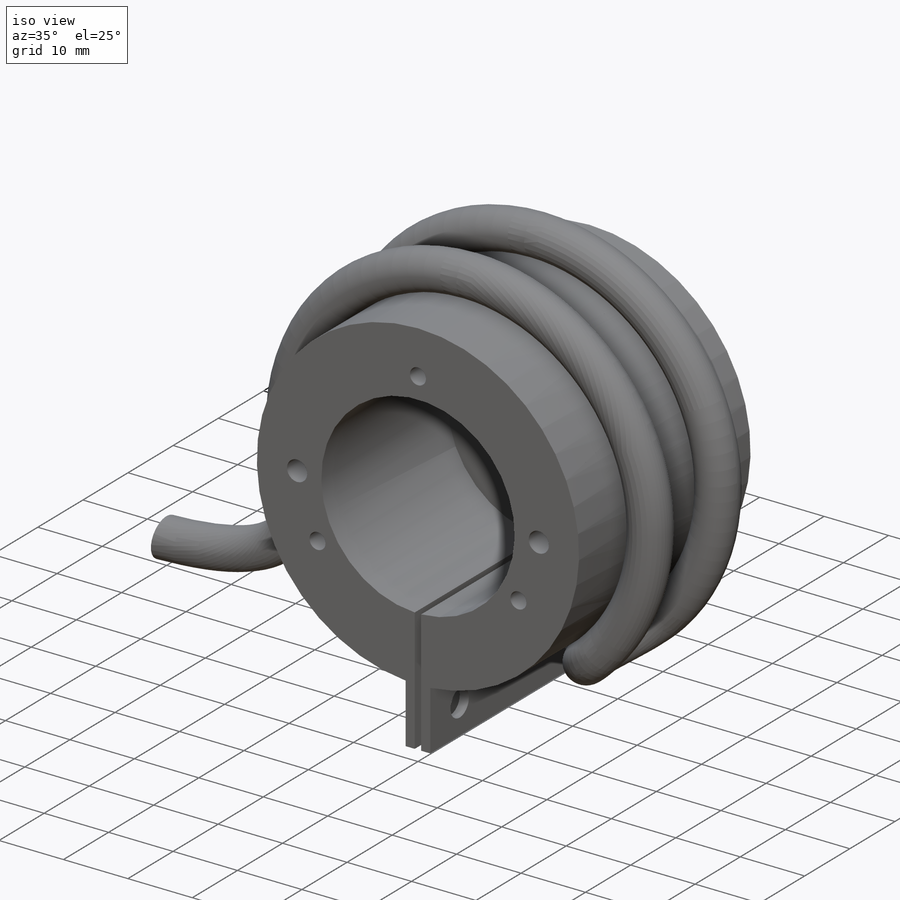
[diagram: iso view]
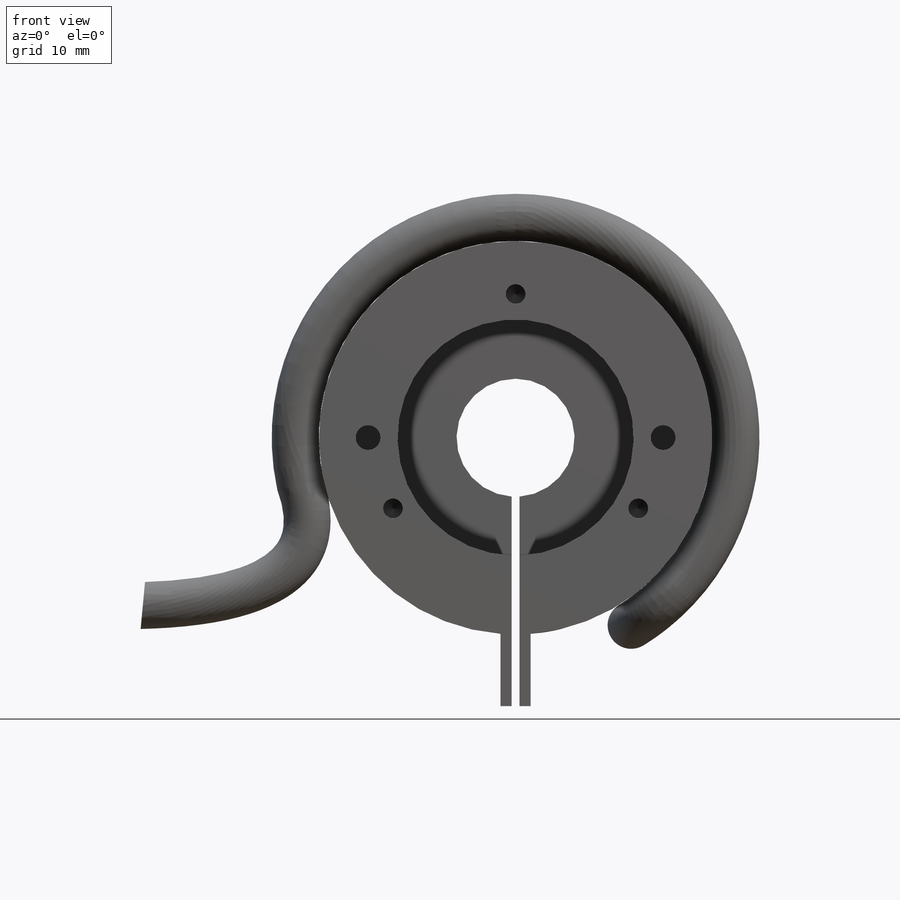
[diagram: front view]
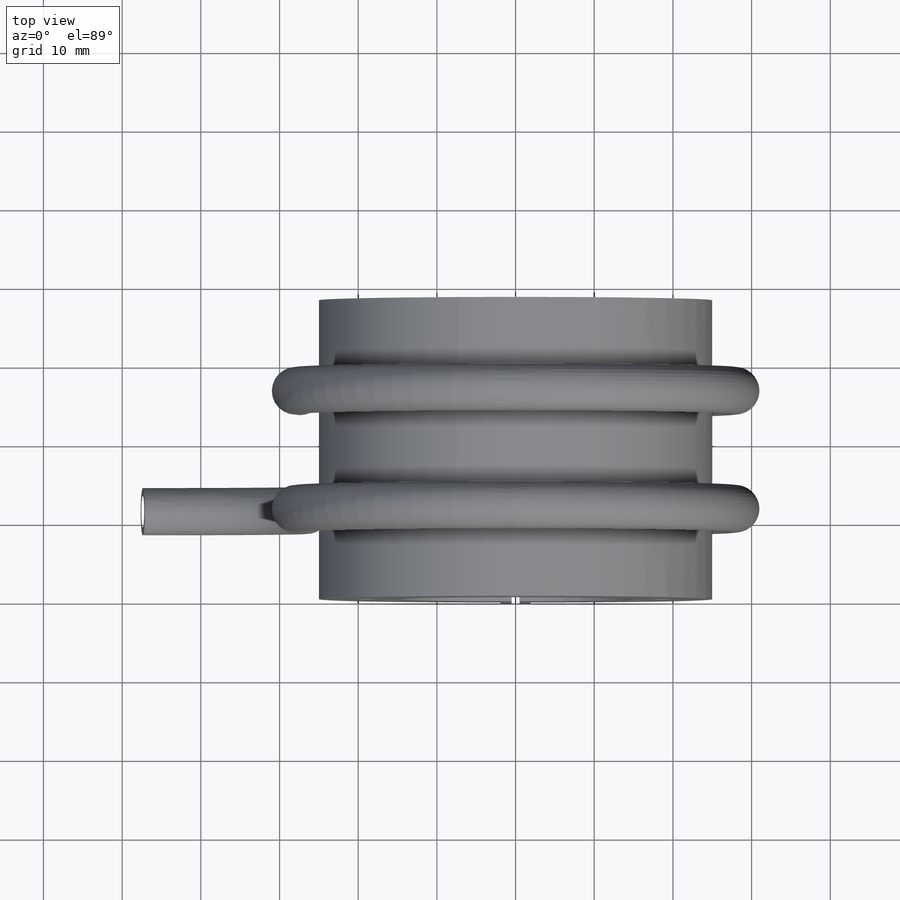
[diagram: top view]
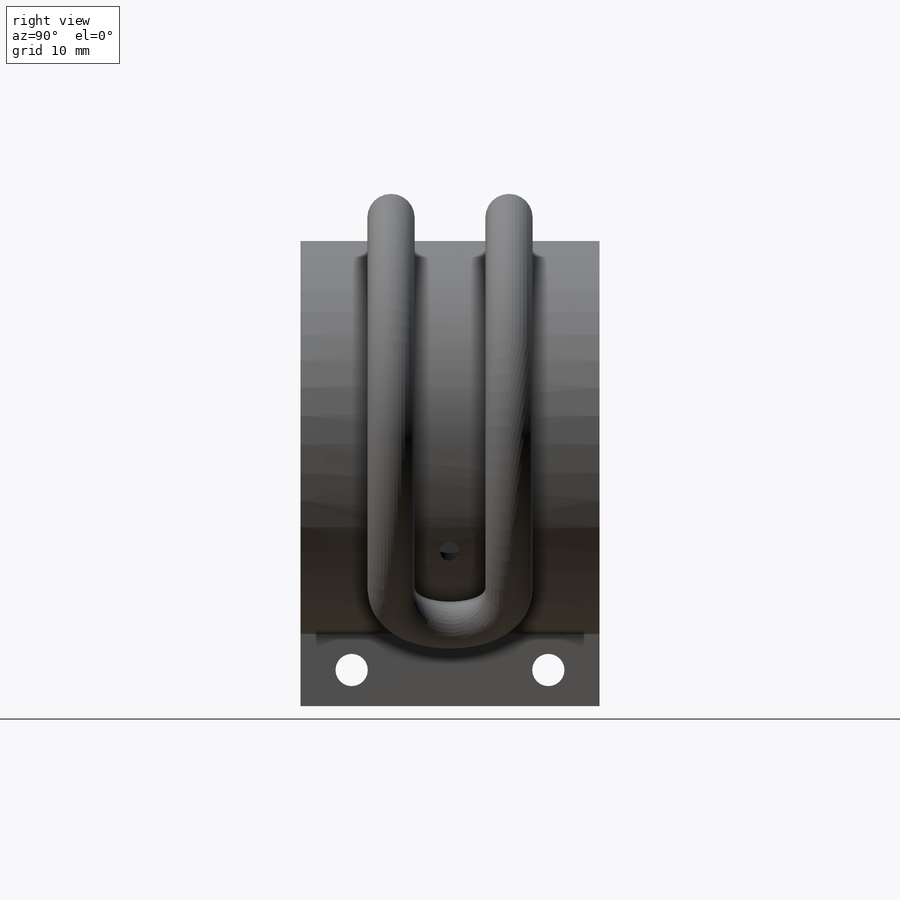
[diagram: right view]
SOLIDWORKS PART (.sldprt)
format: sldprt  version: not decoded by parser v0  size: 955,904 bytes
history: native  units: mm
features: sketch x16, plane x13, cut_extrude x4, mirror x4, hole x2, thread x2, sweep x2, material x1, extrude x1 (+10 scaffold rows collapsed)
feature tree (55):
  scaffold x10  (default folders/planes/origin — collapsed)
  material  "Material <nicht festgelegt>"
  plane  "Ebene vorne"
  plane  "Ebene oben"
  plane  "Ebene rechts"
  sketch  "Skizze1"  dims[c1.D1=~23.314596mm c2.D1=28.0mm c2.D5=10.0mm c2.D6=10.0mm c2.D7=5.0mm]
  sketch  "Skizze2"  dims[c1.D1=~25.145043mm c2.D1=10.0mm c2.D5=17.5mm c2.D6=10.0mm c2.D7=5.0mm]
  sketch  "Skizze3"  dims[D1=1.0mm]
  cut_extrude  "Schnitt-Linear austragen1"  [1 undecoded]
  sketch  "Skizze7"
  extrude  "Aufsatz-Linear austragen2"  Depth=38mm
  mirror  "Spiegeln1"
  sketch  "Skizze18"  dims[c1.D1=18.0mm c2.D1=150.0deg c3.D1=18.0mm c4.D1=30.0deg]
  hole  "M3x0.5 Gewindebohrung3"  Diameter=2.5mm Depth=8.5mm
  sketch  "Skizze20"
  sketch  "Skizze19"  dims[hole-wizard template sketch: 47 standard entries collapsed; hole parameters kept: c15.Bohrungstiefe=8.5mm c15.D3=~14.816244mm c15.Spitzenwinkel=118.0deg]
  thread  "Bohrungsgewinde8"  Diameter=6mm  [1 undecoded]
  cut_extrude  "Schnitt-Linear austragen2"  Depth=31.5mm
  mirror  "Spiegeln2"
  sketch  "Skizze21"  dims[D1=6.5mm]
  plane  "Ebene1"
  cut_extrude  "Schnitt-Linear austragen3"  [1 undecoded]
  mirror  "Spiegeln3"
  plane  "Ebene2"
  sketch  "Skizze24"  dims[D1=2.5mm]
  cut_extrude  "Schnitt-Linear austragen4"  [1 undecoded]
  plane  "Ebene3"  Offset=25mm
  plane  "Ebene4"  Offset=10.5mm
  sketch  "Skizze25"  dims[D1=~2.839657mm]
  hole  "M3x0.5 Gewindebohrung4"  Diameter=2.5mm Depth=19.330489mm
  sketch  "Skizze27"
  sketch  "Skizze26"  dims[hole-wizard template sketch: 60 standard entries collapsed; hole parameters kept: c18.Bohrungstiefe=~19.330489mm c18.D2=3.0mm]
  plane  "Ebene5"  Offset=50mm
  plane  "Ebene10"  Offset=7.5mm
  plane  "Ebene11"  Offset=7.5mm
  plane  "Ebene17"  Offset=3mm
  plane  "Ebene18"  Offset=28mm
  sketch  "Skizze29"  dims[D1=7.5mm D2=65.0mm D3=15.0mm D4=65.0mm]
  plane  "Ebene20"
  sketch  "Skizze33"  dims[D1=5.999mm]
  sweep  "Austragung-Dünn5"
  thread  "Punkt2"  [2 undecoded]
  sketch  "Skizze36"  dims[D1=0.0mm D2=~0.128743mm]
  sketch  "Skizze37"
  sweep  "Austragung-Dünn6"
  mirror  "Spiegeln4"
decode coverage: 17 of 31 modeling features carry decoded parameters
note: ~ marks probable driven/reference dimensions
note: 6 parameter values undecoded
summary: no parameter record found for 4 features
note: suppression state not decoded; provenance and decode notes live in map.json
